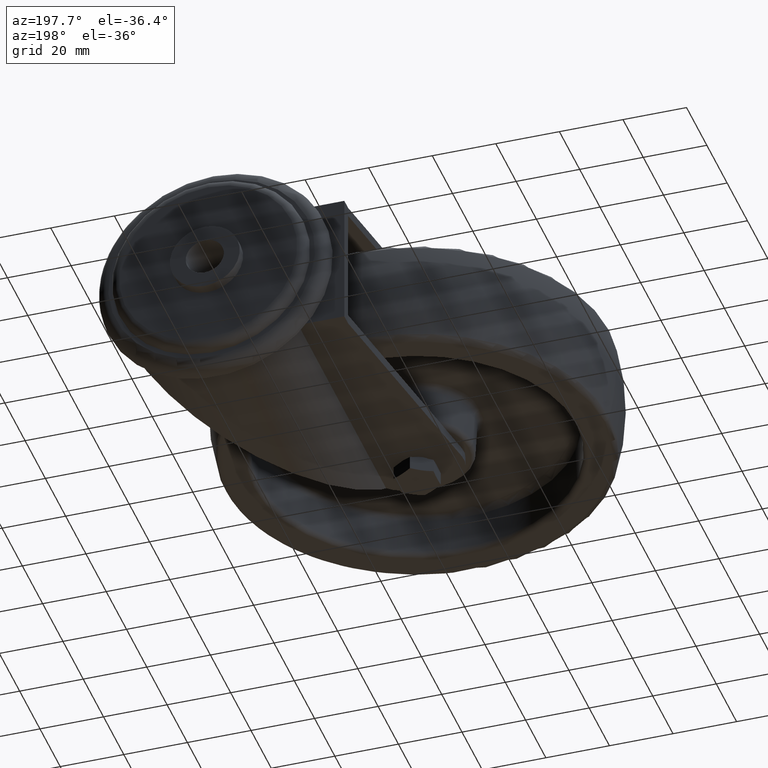
[diagram: clean part render]
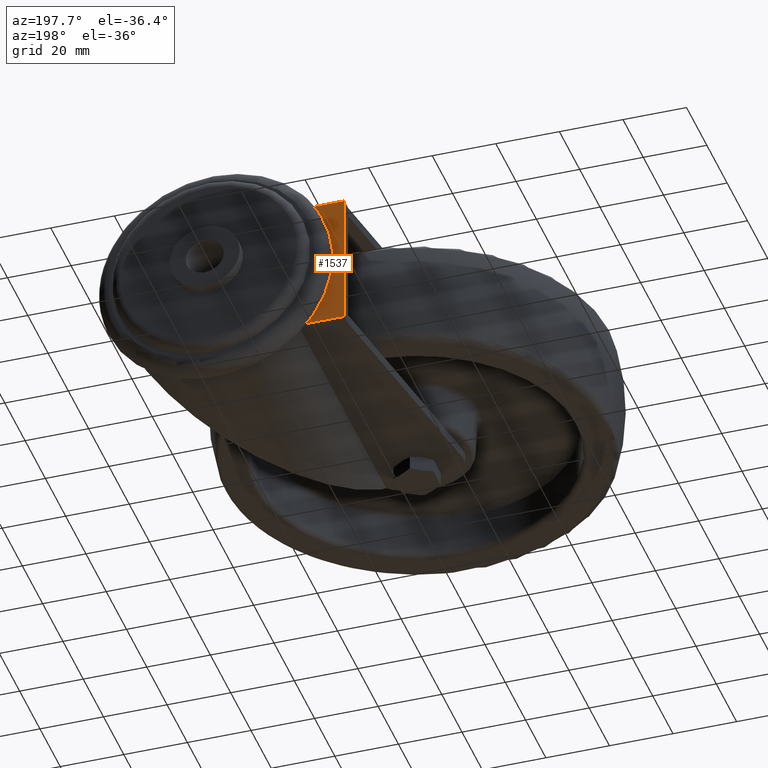
[diagram: same view with one face highlighted and labeled with its STEP entity id]
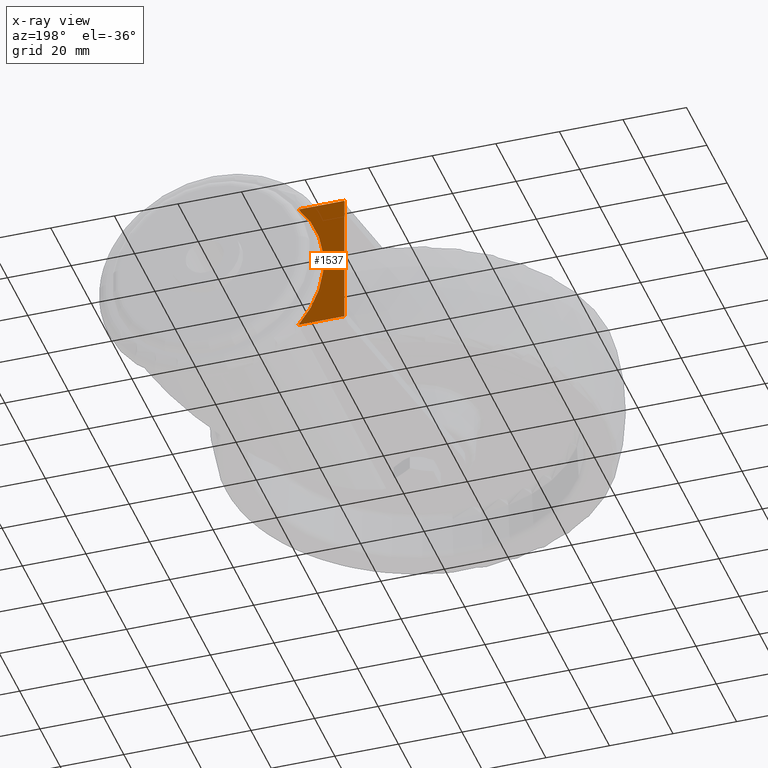
[diagram: x-ray of the same camera — body ghosted, the highlighted face saturated]
A machine part, auxiliary view. The second image highlights one B-rep face of the part: STEP entity #1537.
The next image is the same camera in x-ray: the body ghosted, the highlighted face saturated — about 0% of this face is hidden behind the body in this view.
In plain terms, the highlighted planar face has unit normal (0, -1, 0).
Its self-contained STEP definition (entity closure, byte-faithful):
#173=PLANE('',#1772);
#226=FACE_OUTER_BOUND('',#332,.T.);
#332=EDGE_LOOP('',(#1110,#1111,#1112,#1113));
#459=CIRCLE('',#1770,33.);
#582=LINE('',#2594,#646);
#583=LINE('',#2595,#647);
#584=LINE('',#2596,#648);
#646=VECTOR('',#2053,1000.);
#647=VECTOR('',#2054,1000.);
#648=VECTOR('',#2055,1000.);
#717=VERTEX_POINT('',#2585);
#718=VERTEX_POINT('',#2587);
#719=VERTEX_POINT('',#2592);
#720=VERTEX_POINT('',#2593);
#868=EDGE_CURVE('',#718,#717,#459,.T.);
#871=EDGE_CURVE('',#719,#720,#582,.T.);
#872=EDGE_CURVE('',#718,#719,#583,.T.);
#873=EDGE_CURVE('',#717,#720,#584,.T.);
#1110=ORIENTED_EDGE('',*,*,#871,.F.);
#1111=ORIENTED_EDGE('',*,*,#872,.F.);
#1112=ORIENTED_EDGE('',*,*,#868,.T.);
#1113=ORIENTED_EDGE('',*,*,#873,.T.);
#1537=ADVANCED_FACE('',(#226),#173,.F.);
#1770=AXIS2_PLACEMENT_3D('',#2588,#2046,#2047);
#1772=AXIS2_PLACEMENT_3D('',#2591,#2051,#2052);
#2046=DIRECTION('center_axis',(0.,-1.,0.));
#2047=DIRECTION('ref_axis',(0.,0.,-1.));
#2051=DIRECTION('center_axis',(0.,-1.,0.));
#2052=DIRECTION('ref_axis',(0.,0.,-1.));
#2053=DIRECTION('',(0.,0.,-1.));
#2054=DIRECTION('',(-1.,0.,0.));
#2055=DIRECTION('',(-1.,0.,0.));
#2585=CARTESIAN_POINT('',(11.9650244657599,79.7,-21.5));
#2587=CARTESIAN_POINT('',(11.9650244657599,79.7,21.5));
#2588=CARTESIAN_POINT('Origin',(37.,79.7,0.));
#2591=CARTESIAN_POINT('Origin',(37.,79.7,21.5));
#2592=CARTESIAN_POINT('',(-2.5,79.7,21.5));
#2593=CARTESIAN_POINT('',(-2.5,79.7,-21.5));
#2594=CARTESIAN_POINT('',(-2.5,79.7,21.5));
#2595=CARTESIAN_POINT('',(37.,79.7,21.5));
#2596=CARTESIAN_POINT('',(37.,79.7,-21.5));